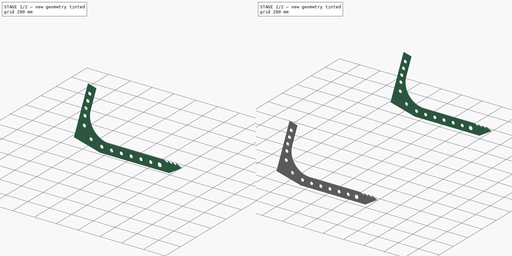
[diagram: build sequence overview — one tinted view per stage of 2, left to right]
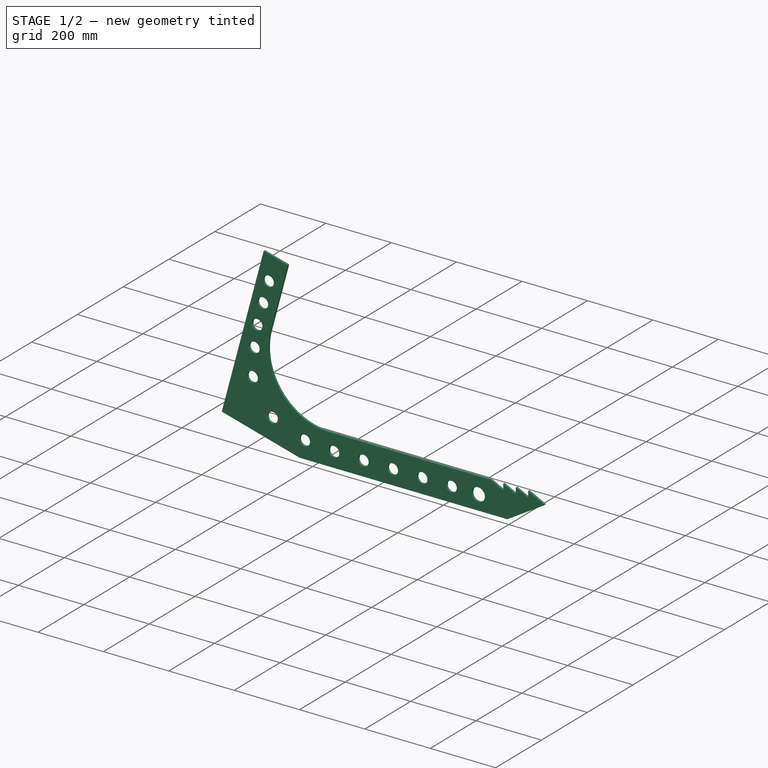
[diagram: stage 1 of 2 — iso view after this stage's code; geometry added in this stage tinted green]
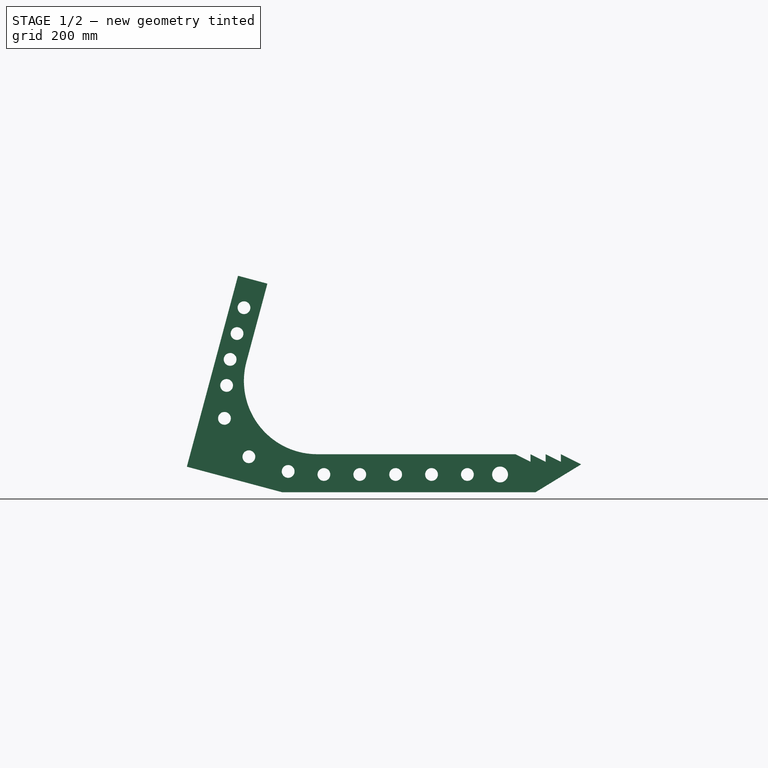
[diagram: stage 1 of 2 — front view after this stage's code; geometry added in this stage tinted green]
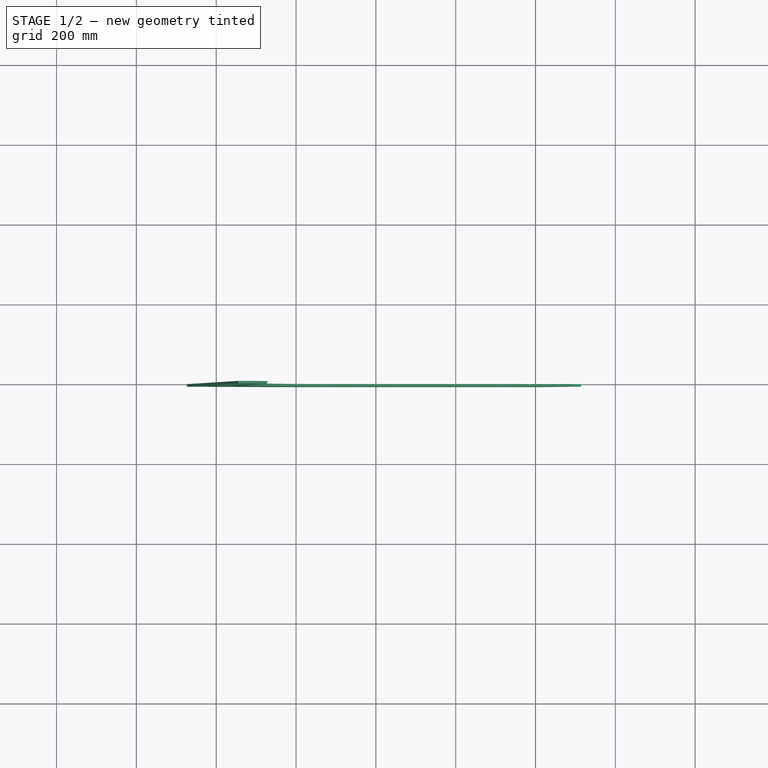
[diagram: stage 1 of 2 — top view after this stage's code; geometry added in this stage tinted green]
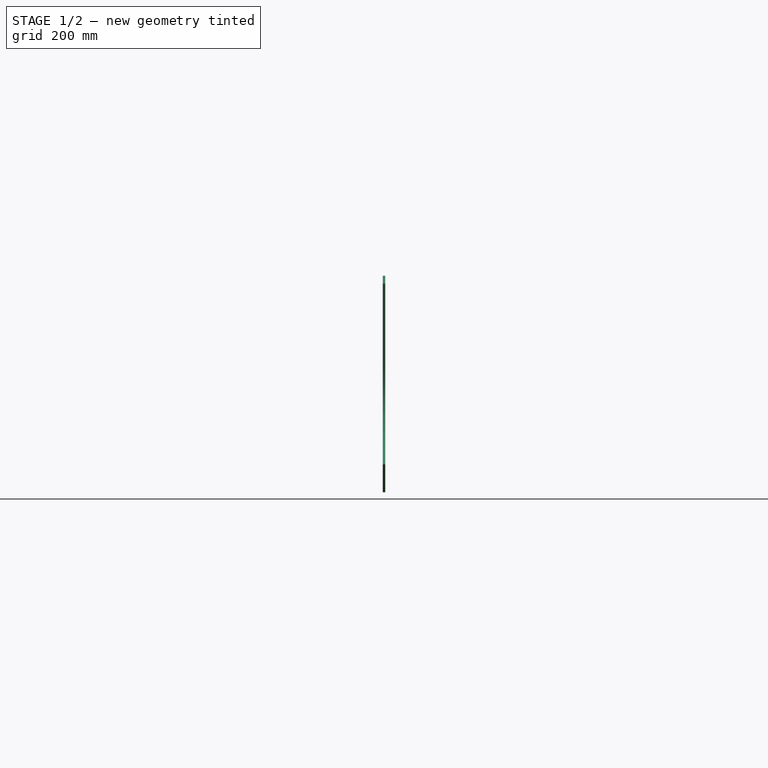
[diagram: stage 1 of 2 — right view after this stage's code; geometry added in this stage tinted green]
FCSTD DOCUMENT  (FreeCAD 0.17R13522 (Git))
Label: Outside tine
License: CreativeCommons Attribution
LicenseURL: http://creativecommons.org/licenses/by/4.0/
objects: Sketcher::SketchObject×1, PartDesign::Pad×1, PartDesign::Body×1, Part::FeaturePython×1
note: 5 computed .brp shape members not serialized (recipe doc carries the construction recipe); baked Part::Feature solids carry a one-line shape summary decoded from their .brp

FEATURE [Sketcher::SketchObject] Sketch  label="ouside tine sketch"
  MapMode = 5
  Placement = pos=(0,0,0) rot=(1,0,0;1.5708rad)
  sketch-geometry (45):
    g0: LineSegment StartX=165.1 StartY=0 StartZ=0 EndX=800.1 EndY=0 EndZ=0
    g1: LineSegment StartX=800.1 StartY=0 StartZ=0 EndX=914.4 EndY=69.85 EndZ=0
    g2: LineSegment StartX=749.3 StartY=95.25 StartZ=0 EndX=252.957 EndY=95.25 EndZ=0
    g3: LineSegment StartX=75.601 StartY=326.385 StartZ=0 EndX=108.471 EndY=449.058 EndZ=0
    g4: LineSegment [constr] StartX=108.471 StartY=449.058 StartZ=0 EndX=34.8675 EndY=468.78 EndZ=0
    g5: LineSegment StartX=34.8675 StartY=468.78 StartZ=0 EndX=-53.8815 EndY=137.564 EndZ=0
    g6: LineSegment StartX=165.1 StartY=0 StartZ=0 EndX=0 EndY=44.2384 EndZ=0
    g7: Circle CenterX=711.2 CenterY=44.45 CenterZ=0 NormalX=0 NormalY=0 NormalZ=1 AngleXU=0 Radius=19.8755
    g8: LineSegment [constr] StartX=19.722 StartY=117.842 StartZ=0 EndX=0 EndY=44.2384 EndZ=0
    g9: LineSegment StartX=-73.6035 StartY=63.9604 StartZ=0 EndX=-53.8815 EndY=137.564 EndZ=0
    g10: LineSegment StartX=-73.6035 StartY=63.9604 StartZ=0 EndX=0 EndY=44.2384 EndZ=0
    g11: LineSegment [constr] StartX=19.722 StartY=117.842 StartZ=0 EndX=-53.8815 EndY=137.564 EndZ=0
    g12: LineSegment StartX=914.4 StartY=69.85 StartZ=0 EndX=863.6 EndY=95.25 EndZ=0
    g13: LineSegment StartX=863.6 StartY=95.25 StartZ=0 EndX=863.6 EndY=76.2 EndZ=0
    g14: LineSegment StartX=863.6 StartY=76.2 StartZ=0 EndX=825.5 EndY=95.25 EndZ=0
    g15: LineSegment StartX=825.5 StartY=95.25 StartZ=0 EndX=825.5 EndY=76.2 EndZ=0
    g16: LineSegment StartX=825.5 StartY=76.2 StartZ=0 EndX=787.4 EndY=95.25 EndZ=0
    g17: LineSegment StartX=787.4 StartY=95.25 StartZ=0 EndX=787.4 EndY=76.2 EndZ=0
    g18: LineSegment StartX=787.4 StartY=76.2 StartZ=0 EndX=749.3 EndY=95.25 EndZ=0
    g19: LineSegment [constr] StartX=629.363 StartY=44.45 StartZ=0 EndX=539.477 EndY=44.45 EndZ=0
    g20: LineSegment [constr] StartX=539.477 StartY=44.45 StartZ=0 EndX=449.591 EndY=44.45 EndZ=0
    g21: LineSegment [constr] StartX=449.591 StartY=44.45 StartZ=0 EndX=359.705 EndY=44.45 EndZ=0
    g22: LineSegment [constr] StartX=359.705 StartY=44.45 StartZ=0 EndX=269.819 EndY=44.45 EndZ=0
    g23: LineSegment [constr] StartX=269.819 StartY=44.45 StartZ=0 EndX=180.259 EndY=52.0947 EndZ=0
    g24: LineSegment [constr] StartX=180.259 StartY=52.0947 StartZ=0 EndX=81.8176 EndY=88.9328 EndZ=0
    g25: LineSegment [constr] StartX=69.5263 StartY=462.368 StartZ=0 EndX=52.1708 EndY=397.596 EndZ=0
    g26: LineSegment [constr] StartX=52.1708 StartY=397.596 StartZ=0 EndX=34.8153 EndY=332.825 EndZ=0
    g27: LineSegment [constr] StartX=34.8153 StartY=332.825 StartZ=0 EndX=25.9917 EndY=267.609 EndZ=0
    g28: LineSegment [constr] StartX=25.9917 StartY=267.609 StartZ=0 EndX=20.6454 EndY=185.123 EndZ=0
    g29: Circle CenterX=69.5263 CenterY=462.368 CenterZ=0 NormalX=0 NormalY=0 NormalZ=1 AngleXU=0 Radius=16.002
    g30: Circle CenterX=52.1708 CenterY=397.596 CenterZ=0 NormalX=0 NormalY=0 NormalZ=1 AngleXU=0 Radius=16.002
    g31: Circle CenterX=34.8153 CenterY=332.825 CenterZ=0 NormalX=0 NormalY=0 NormalZ=1 AngleXU=0 Radius=16.002
    g32: Circle CenterX=25.9917 CenterY=267.609 CenterZ=0 NormalX=0 NormalY=0 NormalZ=1 AngleXU=0 Radius=16.002
    g33: Circle CenterX=20.6454 CenterY=185.123 CenterZ=0 NormalX=0 NormalY=0 NormalZ=1 AngleXU=0 Radius=16.002
    g34: Circle CenterX=629.363 CenterY=44.45 CenterZ=0 NormalX=0 NormalY=0 NormalZ=1 AngleXU=0 Radius=16.002
    g35: Circle CenterX=539.477 CenterY=44.45 CenterZ=0 NormalX=0 NormalY=0 NormalZ=1 AngleXU=0 Radius=16.002
    g36: Circle CenterX=449.591 CenterY=44.45 CenterZ=0 NormalX=0 NormalY=0 NormalZ=1 AngleXU=0 Radius=16.002
    g37: Circle CenterX=359.705 CenterY=44.45 CenterZ=0 NormalX=0 NormalY=0 NormalZ=1 AngleXU=0 Radius=16.002
    g38: Circle CenterX=269.819 CenterY=44.45 CenterZ=0 NormalX=0 NormalY=0 NormalZ=1 AngleXU=0 Radius=16.002
    g39: Circle CenterX=180.259 CenterY=52.0947 CenterZ=0 NormalX=0 NormalY=0 NormalZ=1 AngleXU=0 Radius=16.002
    g40: Circle CenterX=81.8176 CenterY=88.9328 CenterZ=0 NormalX=0 NormalY=0 NormalZ=1 AngleXU=0 Radius=16.002
    g41: ArcOfCircle CenterX=252.957 CenterY=278.863 CenterZ=0 NormalX=0 NormalY=0 NormalZ=1 AngleXU=0 Radius=183.613 StartAngle=2.87979 EndAngle=4.71239
    g42: LineSegment StartX=34.8675 StartY=468.78 StartZ=0 EndX=54.5895 EndY=542.383 EndZ=0
    g43: LineSegment StartX=54.5895 StartY=542.383 StartZ=0 EndX=128.193 EndY=522.661 EndZ=0
    g44: LineSegment StartX=128.193 StartY=522.661 StartZ=0 EndX=108.471 EndY=449.058 EndZ=0
  constraints (101):
    c: Horizontal(g0)
    c: Coincident(g0,g1)
    c: Horizontal(g2)
    c: Coincident(g3,g4)
    c: Coincident(g4,g5)
    c: Parallel(g3,g5)
    c: Perpendicular(g4,g3)
    c: Coincident(g0,g6)
    c: PointOnObject(g0,g-1)
    c: Angle(g-2,g5) = 2.87979
    c: Distance(g3) = 127
    c: Perpendicular(g5,g6)
    c: Radius(g7) = 19.8755
    c: Perpendicular(g6,g8)
    c: Coincident(g6,g8)
    c: Coincident(g9,g5)
    c: Coincident(g10,g6)
    c: Distance(g8) = 76.2
    c: Parallel(g10,g6)
    c: Parallel(g9,g5)
    c: Distance(g4,g9) = 419.1
    c: Coincident(g10,g9)
    c: PointOnObject(g6,g-2)
    c: PointOnObject(g8,g3)
    c: Coincident(g11,g8)
    c: Coincident(g11,g5)
    c: Perpendicular(g8,g11)
    c: DistanceX(g-1,g0) = 165.1
    c: Distance(g4) = 76.2
    c: Vertical(g13)
    c: Coincident(g13,g14)
    c: PointOnObject(g15,g2)
    c: Vertical(g15)
    c: Coincident(g15,g16)
    c: PointOnObject(g17,g2)
    c: Vertical(g17)
    c: Coincident(g17,g18)
    c: Parallel(g18,g16)
    c: Parallel(g16,g14)
    c: Parallel(g14,g12)
    c: Equal(g13,g15)
    c: Equal(g15,g17)
    c: Equal(g14,g16)
    c: Equal(g16,g18)
    c: DistanceY(g13,g13) = 19.05
    c: DistanceX(g15,g14) = 38.1
    c: DistanceX(g-1,g0) = 800.1
    c: Coincident(g2,g18)
    c: Coincident(g12,g13)
    c: Coincident(g15,g14)
    c: Coincident(g16,g17)
    c: Coincident(g1,g12)
    c: DistanceY(g0,g12) = 95.25
    c: DistanceX(g12,g1) = 50.8
    c: DistanceX(g-1,g7) = 711.2
    c: DistanceX(g-1,g1) = 914.4
    c: Horizontal(g19)
    c: Coincident(g19,g20)
    c: Horizontal(g20)
    c: Coincident(g20,g21)
    c: Horizontal(g21)
    c: Coincident(g21,g22)
    c: Horizontal(g22)
    c: Coincident(g22,g23)
    c: Coincident(g23,g24)
    c: Coincident(g25,g26)
    c: Coincident(g26,g27)
    c: Coincident(g27,g28)
    c: Equal(g19,g20)
    c: Equal(g20,g21)
    c: Equal(g21,g22)
    c: Equal(g25,g26)
    c: Parallel(g25,g26)
    c: Coincident(g29,g25)
    c: Coincident(g30,g25)
    c: Coincident(g31,g26)
    c: Coincident(g32,g27)
    c: Coincident(g33,g28)
    c: Coincident(g34,g19)
    c: Coincident(g35,g19)
    c: Coincident(g36,g20)
    c: Coincident(g37,g21)
    c: Coincident(g38,g22)
    c: Coincident(g39,g23)
    c: Coincident(g40,g24)
    c: Distance(g19,g0) = 44.45
    c: Parallel(g25,g5)
    c: Tangent(g2,g41) = 1.5708
    c: Coincident(g41,g3)
    c: Tangent(g41,g3)
    c: PointOnObject(g7,g19)
    c: Radius(g29) = 16.002
    c: Equal(g29, g30-g40) x11
    c: Coincident(g4,g42)
    c: Coincident(g42,g43)
    c: Coincident(g43,g44)
    c: Coincident(g44,g3)
    c: Parallel(g3,g44)
    c: Perpendicular(g43,g44)
    c: Perpendicular(g42,g43)
    c: Equal(g44,g43)
FEATURE [PartDesign::Pad] Pad
  Length = 6.35
  Length2 = 100.076
  Placement = pos=(0,0,0) rot=(1,0,0;1.5708rad)
  Profile = -> Sketch
  Type = 0
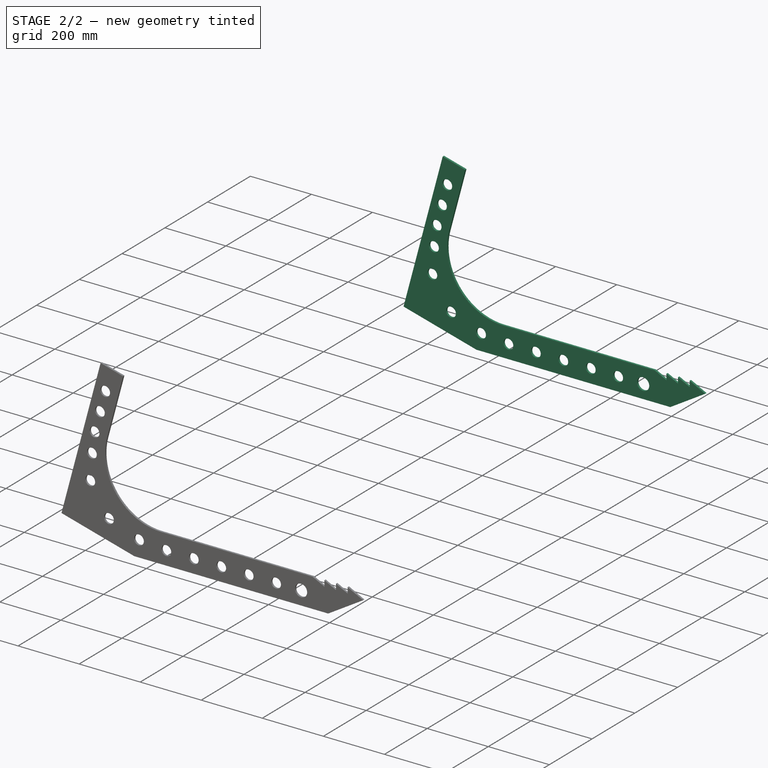
[diagram: stage 2 of 2 — iso view after this stage's code; geometry added in this stage tinted green]
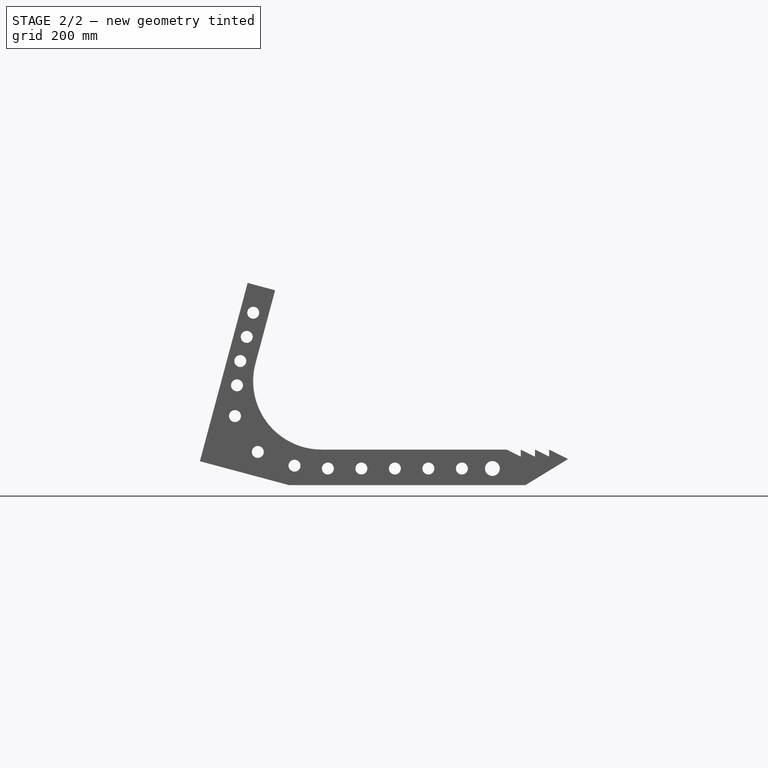
[diagram: stage 2 of 2 — front view after this stage's code; geometry added in this stage tinted green]
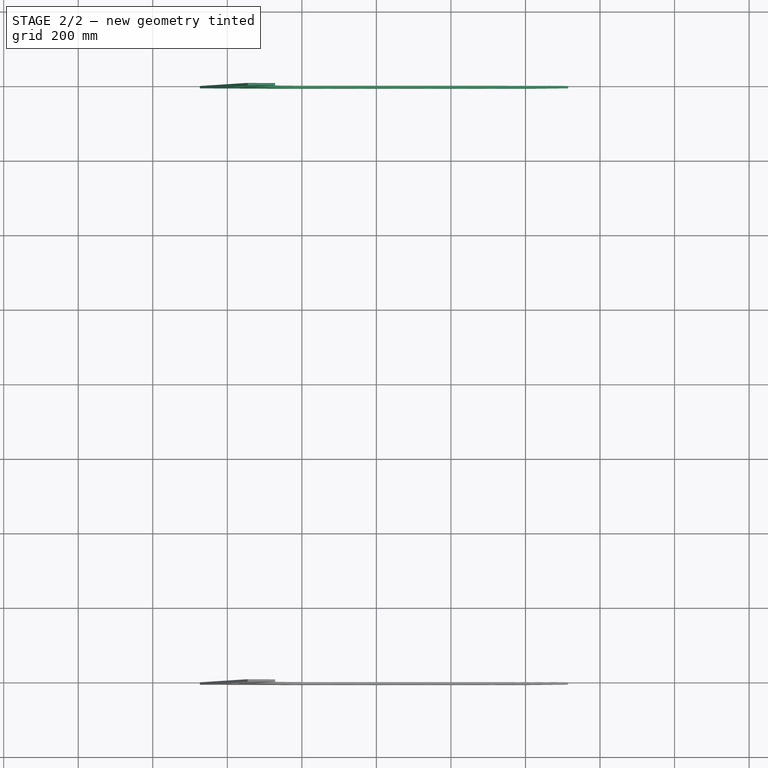
[diagram: stage 2 of 2 — top view after this stage's code; geometry added in this stage tinted green]
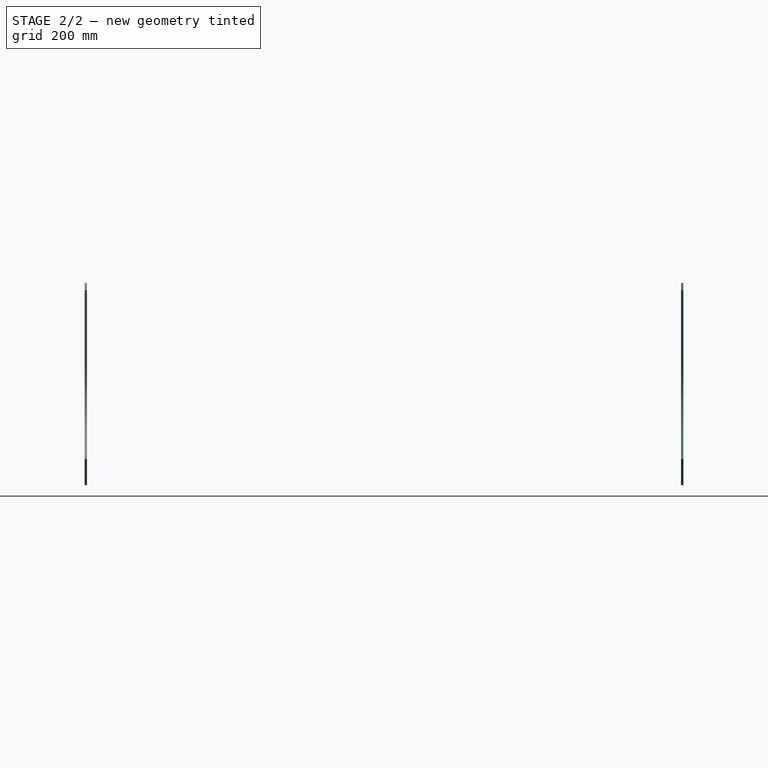
[diagram: stage 2 of 2 — right view after this stage's code; geometry added in this stage tinted green]
FEATURE [PartDesign::Body] Body
  Group = -> [Sketch,Pad]
  Origin = -> Origin
  Tip = -> Pad
FEATURE [Part::FeaturePython] Array  # Draft array (typed FeaturePython)
  Angle = 360
  ArrayType = 0
  Axis = (0,0,1)
  Base = -> Body
  Center = (0,0,0)
  Fuse = false
  IntervalAxis = (0,0,0)
  IntervalX = (1,0,0)
  IntervalY = (0,1600.2,0)
  IntervalZ = (0,0,0)
  NumberPolar = 1
  NumberX = 1
  NumberY = 2
  NumberZ = 1
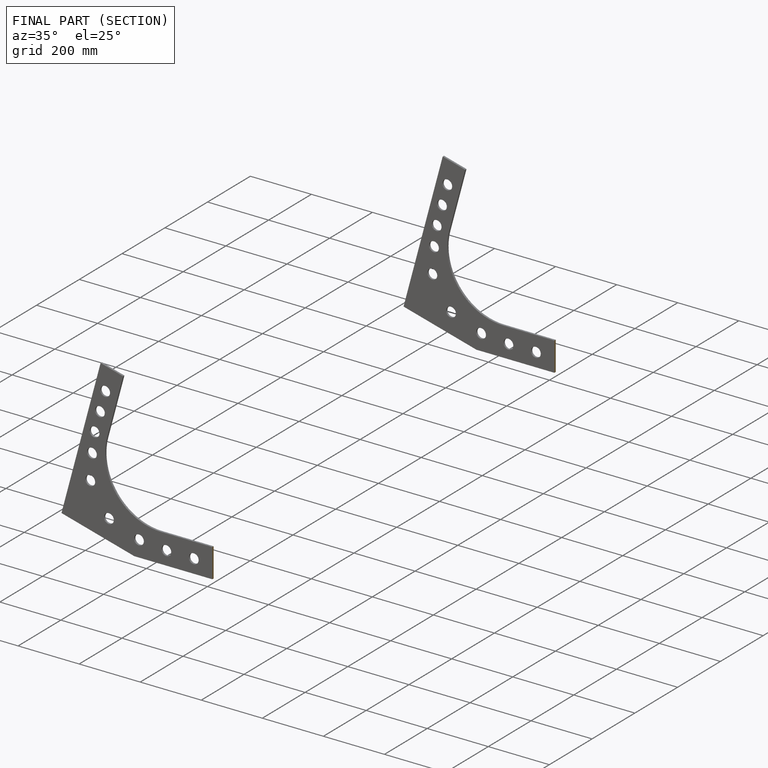
[diagram: finished part — half-section view (interior)]
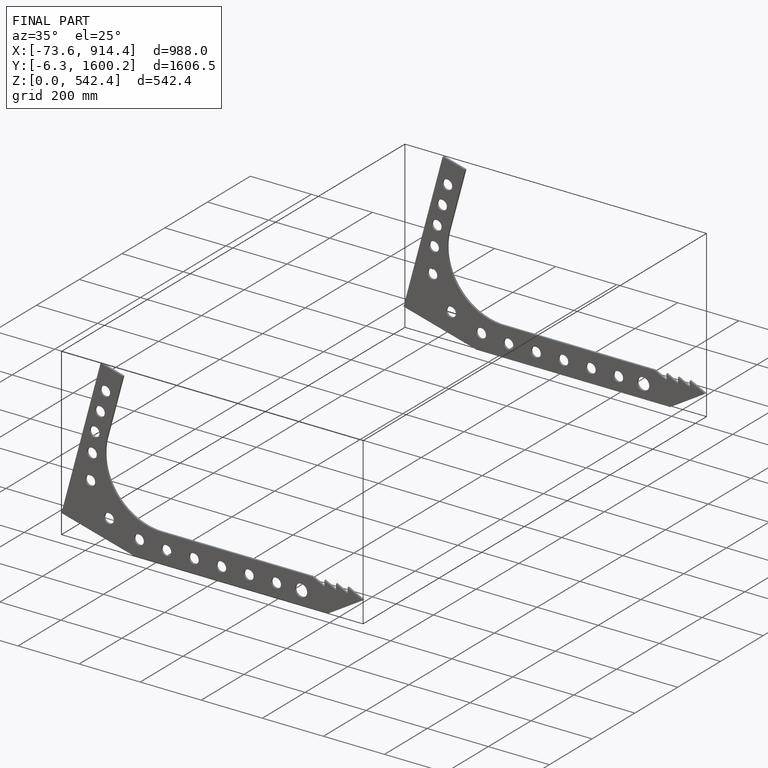
[diagram: finished part — iso view with bounding-box wireframe]
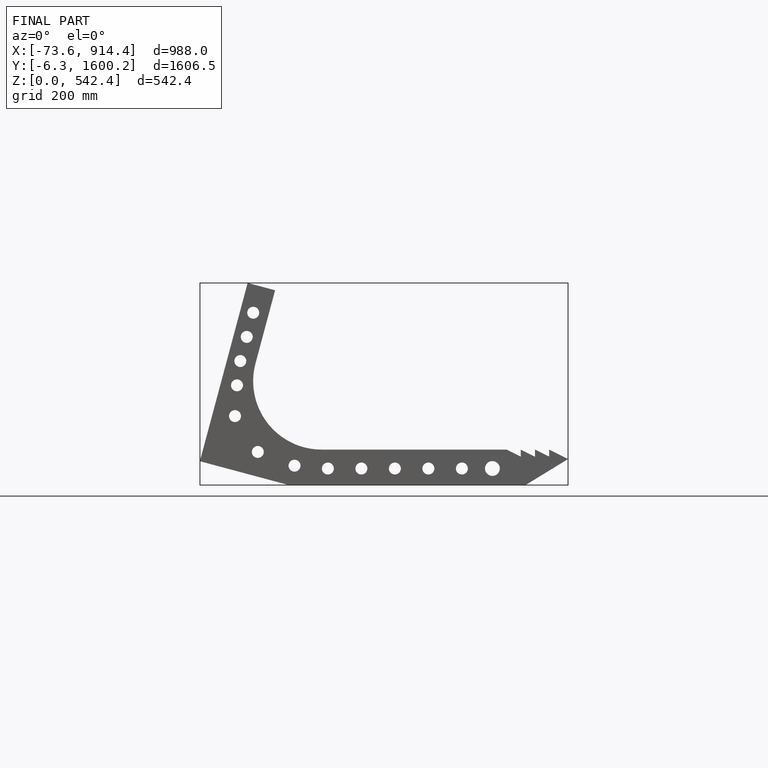
[diagram: finished part — front view with bounding-box wireframe]
